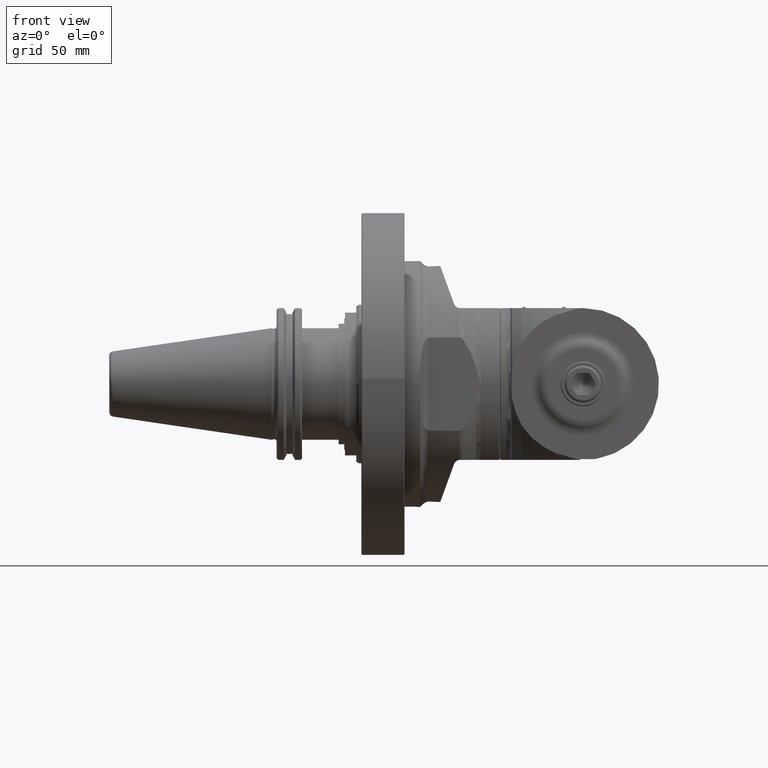
[diagram: clean part render]
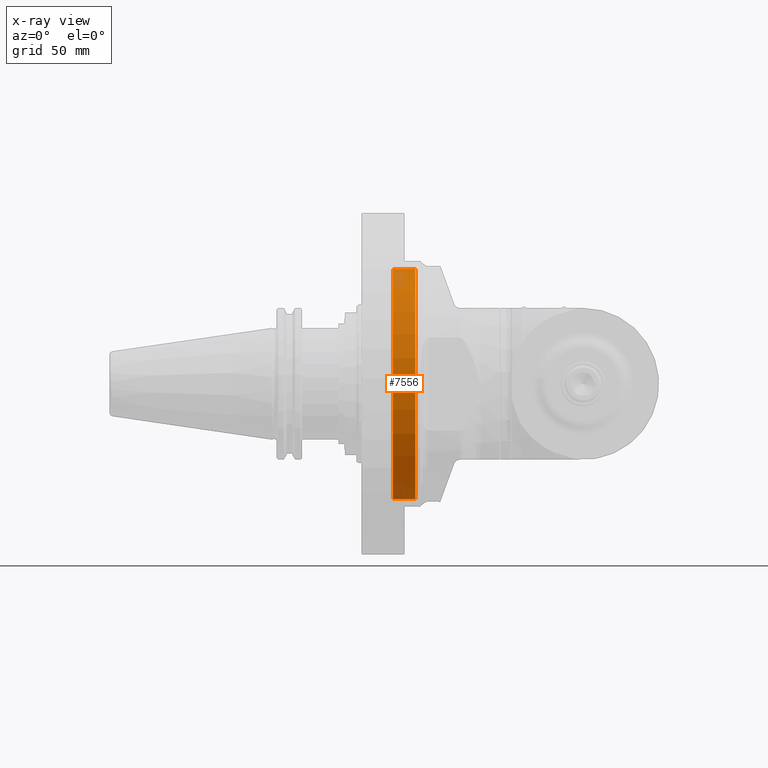
[diagram: x-ray — body ghosted, one internal face saturated and labeled with its STEP entity id]
A machine part, front view, then the same camera in x-ray: the body is ghosted and one INTERNAL B-rep face — a face not visible from any outside direction — is saturated and labeled: STEP entity #7556.
In plain terms, the highlighted cylindrical surface (bore or boss wall) has radius 72 mm, axis along (-1, -0, -0).
Its self-contained STEP definition (entity closure, byte-faithful):
#303=CYLINDRICAL_SURFACE('',#8351,72.);
#688=FACE_OUTER_BOUND('',#1191,.T.);
#1191=EDGE_LOOP('',(#5938,#5939,#5940,#5941,#5942));
#1715=CIRCLE('',#8349,72.);
#1716=CIRCLE('',#8350,72.);
#1717=CIRCLE('',#8352,72.);
#2122=LINE('',#12627,#2622);
#2622=VECTOR('',#9971,72.);
#3393=VERTEX_POINT('',#12620);
#3394=VERTEX_POINT('',#12621);
#3395=VERTEX_POINT('',#12626);
#4304=EDGE_CURVE('',#3393,#3394,#1715,.T.);
#4305=EDGE_CURVE('',#3394,#3393,#1716,.T.);
#4307=EDGE_CURVE('',#3394,#3395,#2122,.T.);
#4308=EDGE_CURVE('',#3395,#3395,#1717,.T.);
#5938=ORIENTED_EDGE('',*,*,#4304,.F.);
#5939=ORIENTED_EDGE('',*,*,#4305,.F.);
#5940=ORIENTED_EDGE('',*,*,#4307,.T.);
#5941=ORIENTED_EDGE('',*,*,#4308,.F.);
#5942=ORIENTED_EDGE('',*,*,#4307,.F.);
#7556=ADVANCED_FACE('',(#688),#303,.T.);
#8349=AXIS2_PLACEMENT_3D('',#12622,#9964,#9965);
#8350=AXIS2_PLACEMENT_3D('',#12623,#9966,#9967);
#8351=AXIS2_PLACEMENT_3D('',#12625,#9969,#9970);
#8352=AXIS2_PLACEMENT_3D('',#12628,#9972,#9973);
#9964=DIRECTION('center_axis',(-1.,0.,0.));
#9965=DIRECTION('ref_axis',(0.,1.,0.));
#9966=DIRECTION('center_axis',(-1.,0.,0.));
#9967=DIRECTION('ref_axis',(0.,1.,0.));
#9969=DIRECTION('center_axis',(-1.,0.,0.));
#9970=DIRECTION('ref_axis',(0.,1.,0.));
#9971=DIRECTION('',(1.,0.,0.));
#9972=DIRECTION('center_axis',(1.,0.,0.));
#9973=DIRECTION('ref_axis',(0.,0.996194697685537,0.0871557473906432));
#12620=CARTESIAN_POINT('',(-26.1339745962194,71.999999999999,8.81745695386083E-15));
#12621=CARTESIAN_POINT('',(-26.13397459622,-72.,8.81745695386094E-15));
#12622=CARTESIAN_POINT('Origin',(-26.13397459622,0.,0.));
#12623=CARTESIAN_POINT('Origin',(-26.13397459622,0.,0.));
#12625=CARTESIAN_POINT('Origin',(-6.,0.,0.));
#12626=CARTESIAN_POINT('',(-12.,-72.,8.81745695386094E-15));
#12627=CARTESIAN_POINT('',(-6.,-72.,8.81745695386094E-15));
#12628=CARTESIAN_POINT('Origin',(-12.,0.,0.));